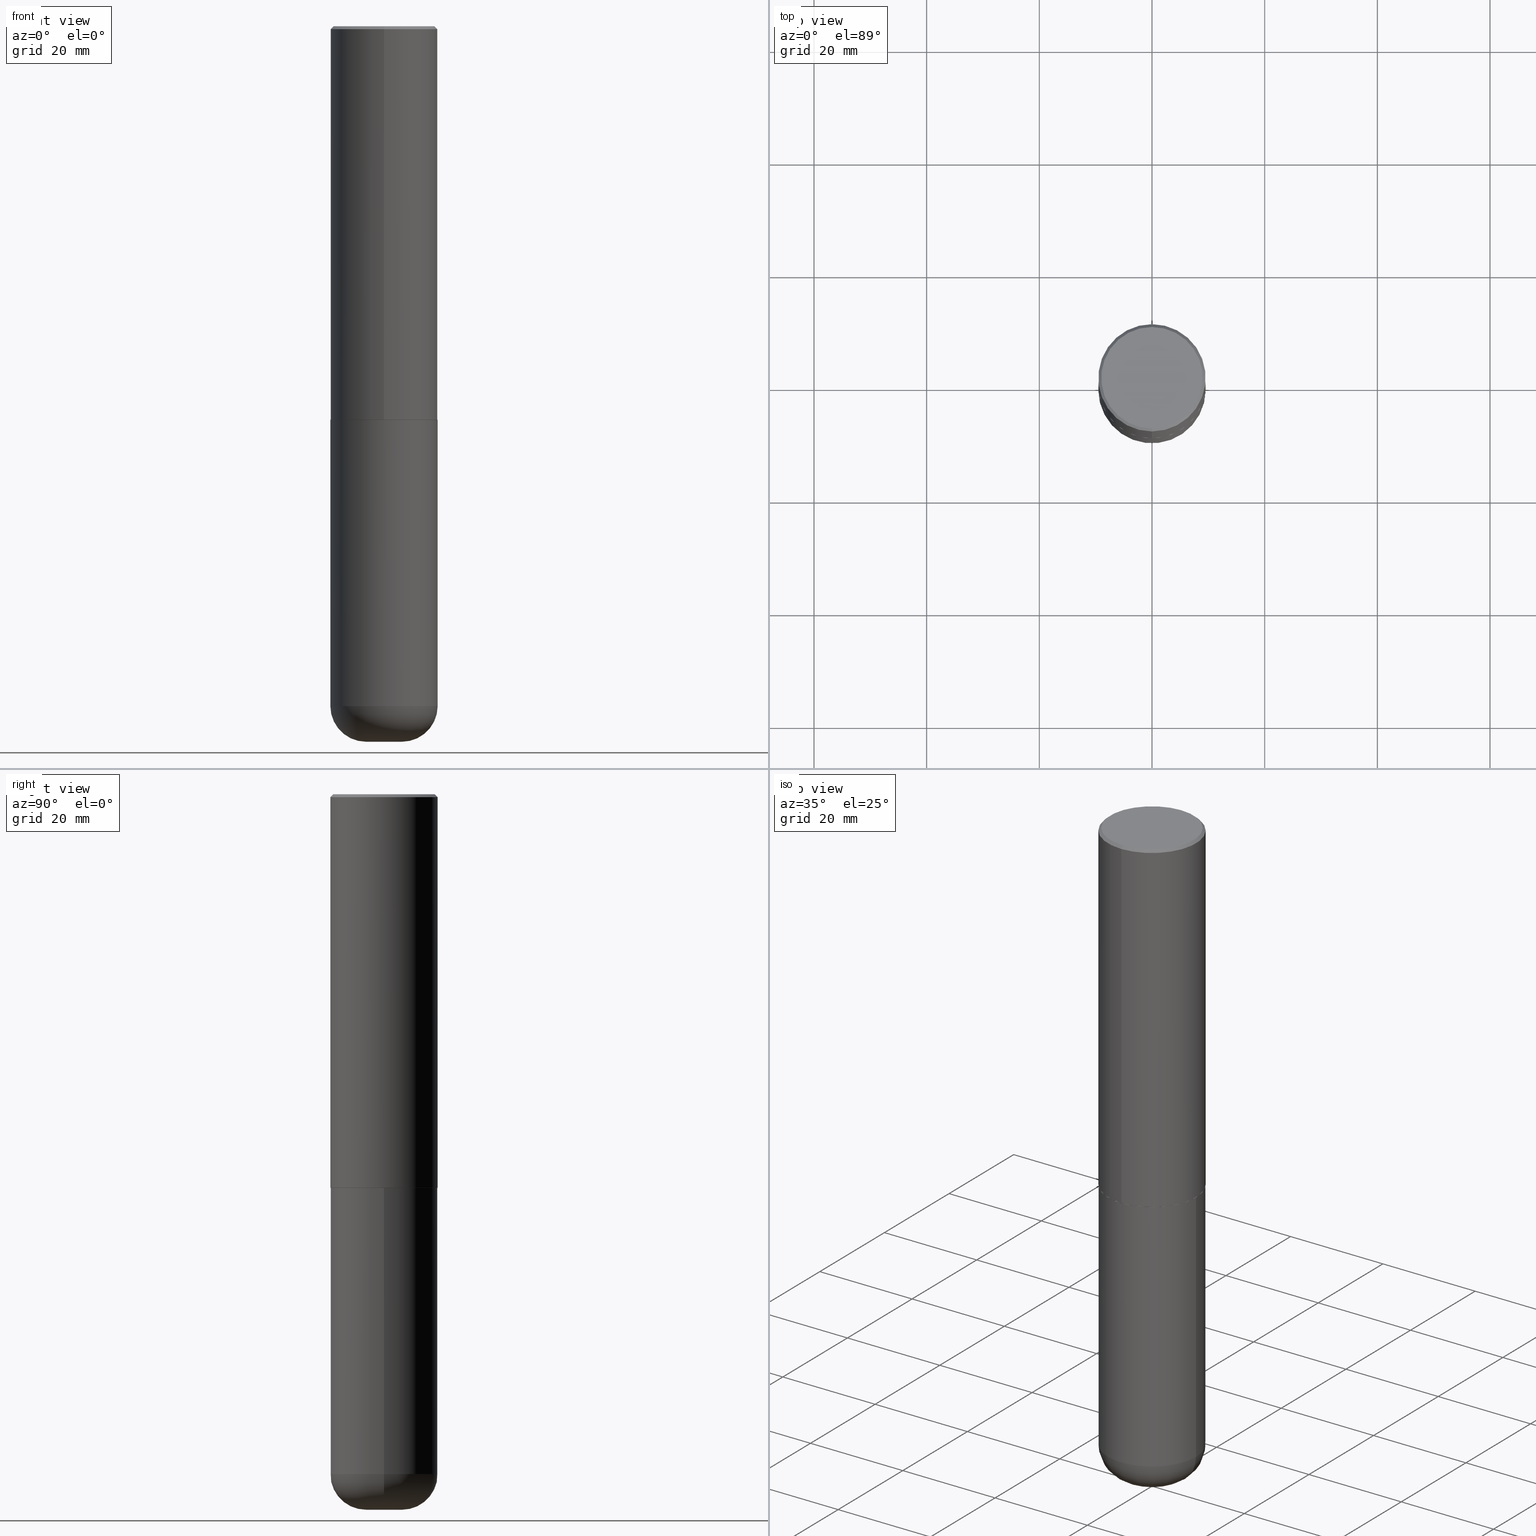
[diagram: canonical four-view strip — front | top / right | iso, engineering-drawing reading convention]
A machine part, canonical four-view strip (front | top / right | iso — engineering-drawing reading convention). The complete STEP part file that produces these views, byte-faithful:
ISO-10303-21;
HEADER;
FILE_DESCRIPTION (( 'STEP AP203' ),
    '1' );
FILE_NAME ('37689.STEP',
    '2024-03-02T08:23:51',
    ( '' ),
    ( '' ),
    'SwSTEP 2.0',
    'SolidWorks 2023',
    '' );
FILE_SCHEMA (( 'CONFIG_CONTROL_DESIGN' ));
ENDSEC;

DATA;
#1 = AXIS2_PLACEMENT_3D ( 'NONE', #287, #129, #194 ) ;
#2 = DIRECTION ( 'NONE',  ( 2.446040391741596606E-29, -3.490662795793665557E-15, -1.000000000000000000 ) ) ;
#3 = VERTEX_POINT ( 'NONE', #278 ) ;
#4 = CARTESIAN_POINT ( 'NONE',  ( 2.478951750578624209E-15, 0.3549999999999999822, -1.215853765202481601E-15 ) ) ;
#5 = VERTEX_POINT ( 'NONE', #168 ) ;
#6 = FACE_OUTER_BOUND ( 'NONE', #268, .T. ) ;
#7 = EDGE_CURVE ( 'NONE', #295, #418, #24, .T. ) ;
#8 = ORIENTED_EDGE ( 'NONE', *, *, #350, .F. ) ;
#9 = DIRECTION ( 'NONE',  ( 1.000000000000000000, -6.982962677686270655E-15, 4.883557194083114583E-29 ) ) ;
#10 = CLOSED_SHELL ( 'NONE', ( #191, #79, #315, #198, #336, #352 ) ) ;
#11 = ORIENTED_EDGE ( 'NONE', *, *, #46, .T. ) ;
#12 = DIRECTION ( 'NONE',  ( -6.982962677686266711E-15, -1.000000000000000000, 3.490662795793665951E-15 ) ) ;
#13 = ORIENTED_EDGE ( 'NONE', *, *, #176, .T. ) ;
#14 = PERSON_AND_ORGANIZATION ( #223, #35 ) ;
#15 = FACE_OUTER_BOUND ( 'NONE', #243, .T. ) ;
#16 = CARTESIAN_POINT ( 'NONE',  ( 6.725039217009124520E-29, -9.601573681818649859E-15, -2.750000000000000000 ) ) ;
#17 = CIRCLE ( 'NONE', #221, 0.3739999999999999991 ) ;
#18 = CALENDAR_DATE ( 2024, 2, 3 ) ;
#19 = EDGE_CURVE ( 'NONE', #5, #32, #126, .T. ) ;
#20 = APPROVAL_STATUS ( 'not_yet_approved' ) ;
#21 = DIMENSIONAL_EXPONENTS ( 1.000000000000000000, 0.000000000000000000, 0.000000000000000000, 0.000000000000000000, 0.000000000000000000, 0.000000000000000000, 0.000000000000000000 ) ;
#22 = PRODUCT_DEFINITION_SHAPE ( 'NONE', 'NONE',  #400 ) ;
#23 = ORIENTED_EDGE ( 'NONE', *, *, #284, .F. ) ;
#24 = CIRCLE ( 'NONE', #73, 0.2500000000000003886 ) ;
#25 = CARTESIAN_POINT ( 'NONE',  ( 4.892080783483214581E-31, -6.981325591587361238E-17, -0.02000000000000008715 ) ) ;
#26 = EDGE_CURVE ( 'NONE', #341, #402, #356, .T. ) ;
#27 = VERTEX_POINT ( 'NONE', #135 ) ;
#28 = CARTESIAN_POINT ( 'NONE',  ( 2.548781377355487113E-15, 0.3549999999999999822, -1.192522237898212341E-15 ) ) ;
#29 = EDGE_LOOP ( 'NONE', ( #108, #71, #139, #298 ) ) ;
#30 = PERSON_AND_ORGANIZATION ( #223, #35 ) ;
#31 = DIRECTION ( 'NONE',  ( 6.982962677686265922E-15, 1.000000000000000000, -3.490662795793665557E-15 ) ) ;
#32 = VERTEX_POINT ( 'NONE', #273 ) ;
#33 = VECTOR ( 'NONE', #261, 39.37007874015748143 ) ;
#34 = DIRECTION ( 'NONE',  ( -2.446040391741596045E-29, 3.490662795793665557E-15, 1.000000000000000000 ) ) ;
#35 = ORGANIZATION ( 'UNSPECIFIED', 'UNSPECIFIED', '' ) ;
#36 = ORIENTED_EDGE ( 'NONE', *, *, #51, .F. ) ;
#37 = CARTESIAN_POINT ( 'NONE',  ( -0.3750000000000000555, -1.042851976156142014E-14, -2.750000000000000000 ) ) ;
#38 = EDGE_LOOP ( 'NONE', ( #232, #319 ) ) ;
#39 = DIRECTION ( 'NONE',  ( -2.445468806185136597E-29, 3.491481338843145583E-15, 1.000000000000000000 ) ) ;
#40 = CARTESIAN_POINT ( 'NONE',  ( 6.724165036897648492E-29, -9.595832025636787455E-15, -2.749000000000000110 ) ) ;
#41 = DESIGN_CONTEXT ( 'detailed design', #351, 'design' ) ;
#42 = CARTESIAN_POINT ( 'NONE',  ( -1.829488409846578039E-28, -6.116697459284396031E-14, -5.000000000000000000 ) ) ;
#43 = ORIENTED_EDGE ( 'NONE', *, *, #26, .T. ) ;
#44 = FACE_OUTER_BOUND ( 'NONE', #354, .T. ) ;
#45 = CARTESIAN_POINT ( 'NONE',  ( -1.141397163745304909E-45, 1.628849886601155835E-31, 4.666305460853910467E-17 ) ) ;
#46 = EDGE_CURVE ( 'NONE', #32, #5, #47, .T. ) ;
#47 = CIRCLE ( 'NONE', #157, 0.3750000000000003886 ) ;
#48 = APPROVAL_ROLE ( '' ) ;
#49 = APPROVAL ( #20, 'UNSPECIFIED' ) ;
#50 = COORDINATED_UNIVERSAL_TIME_OFFSET ( 5, 0, .BEHIND. ) ;
#51 = EDGE_CURVE ( 'NONE', #295, #173, #310, .T. ) ;
#52 = DIRECTION ( 'NONE',  ( -2.446040391741596606E-29, 3.490662795793665557E-15, 1.000000000000000000 ) ) ;
#53 = AXIS2_PLACEMENT_3D ( 'NONE', #331, #300, #101 ) ;
#54 = CONICAL_SURFACE ( 'NONE', #372, 0.3739999999999999991, 0.7853981633977213939 ) ;
#55 = CARTESIAN_POINT ( 'NONE',  ( -1.141397163745304909E-45, 1.628849886601155835E-31, 4.666305460853910467E-17 ) ) ;
#56 = ORIENTED_EDGE ( 'NONE', *, *, #103, .T. ) ;
#57 = LINE ( 'NONE', #289, #252 ) ;
#58 = CIRCLE ( 'NONE', #361, 0.3750000000000000555 ) ;
#59 = CARTESIAN_POINT ( 'NONE',  ( 0.3749999999999999445, -2.618611004132349622E-15, 1.828566290923475642E-29 ) ) ;
#60 = ADVANCED_FACE ( 'NONE', ( #228 ), #91, .T. ) ;
#61 = ORIENTED_EDGE ( 'NONE', *, *, #234, .F. ) ;
#62 = DIRECTION ( 'NONE',  ( -6.982962677686266711E-15, -1.000000000000000000, 2.921762560068730595E-15 ) ) ;
#63 = FACE_OUTER_BOUND ( 'NONE', #38, .T. ) ;
#64 = ORIENTED_EDGE ( 'NONE', *, *, #51, .T. ) ;
#65 = CARTESIAN_POINT ( 'NONE',  ( 0.3750000000000000555, -1.222018468595100145E-14, -2.750000000000000000 ) ) ;
#66 = DIRECTION ( 'NONE',  ( -6.982962677686265922E-15, -1.000000000000000000, 2.913971193241877611E-15 ) ) ;
#67 = DIRECTION ( 'NONE',  ( -2.446040391741596606E-29, 3.490662795793665557E-15, 1.000000000000000000 ) ) ;
#68 = EDGE_LOOP ( 'NONE', ( #11, #87, #265, #119 ) ) ;
#69 = DATE_AND_TIME ( #102, #329 ) ;
#70 = PLANE ( 'NONE',  #317 ) ;
#71 = ORIENTED_EDGE ( 'NONE', *, *, #381, .F. ) ;
#72 = DIRECTION ( 'NONE',  ( -2.445468806185136597E-29, 3.491481338843145583E-15, 1.000000000000000000 ) ) ;
#73 = AXIS2_PLACEMENT_3D ( 'NONE', #405, #200, #165 ) ;
#74 = CC_DESIGN_DATE_AND_TIME_ASSIGNMENT ( #69, #241, ( #296 ) ) ;
#75 = EDGE_LOOP ( 'NONE', ( #306, #130, #224, #262 ) ) ;
#76 = AXIS2_PLACEMENT_3D ( 'NONE', #172, #72, #309 ) ;
#77 = DIRECTION ( 'NONE',  ( -2.446040391741596606E-29, 3.490662795793665557E-15, 1.000000000000000000 ) ) ;
#78 = DIRECTION ( 'NONE',  ( -2.445468806185136877E-29, 3.491481338843145188E-15, 1.000000000000000000 ) ) ;
#79 = ADVANCED_FACE ( 'NONE', ( #388 ), #411, .T. ) ;
#80 = DATE_TIME_ROLE ( 'creation_date' ) ;
#81 = AXIS2_PLACEMENT_3D ( 'NONE', #404, #208, #277 ) ;
#82 = CIRCLE ( 'NONE', #349, 0.1250000000000000555 ) ;
#83 = UNCERTAINTY_MEASURE_WITH_UNIT (LENGTH_MEASURE( 1.000000000000000082E-05 ), #380, 'distance_accuracy_value', 'NONE');
#84 = VECTOR ( 'NONE', #78, 39.37007874015748143 ) ;
#85 = LOCAL_TIME ( 3, 23, 51.00000000000000000, #50 ) ;
#86 =( LENGTH_UNIT ( ) NAMED_UNIT ( * ) SI_UNIT ( $, .METRE. ) );
#87 = ORIENTED_EDGE ( 'NONE', *, *, #255, .T. ) ;
#88 = EDGE_CURVE ( 'NONE', #402, #341, #171, .T. ) ;
#89 = DIRECTION ( 'NONE',  ( 1.000000000000000000, -6.982962677686275388E-15, 0.000000000000000000 ) ) ;
#90 = FACE_OUTER_BOUND ( 'NONE', #210, .T. ) ;
#91 = CONICAL_SURFACE ( 'NONE', #184, 0.3750000000000000555, 0.7853981633974465026 ) ;
#92 = DIRECTION ( 'NONE',  ( 5.024295867789434219E-15, 0.7071067811867430830, 0.7071067811863519514 ) ) ;
#93 = ORIENTED_EDGE ( 'NONE', *, *, #167, .F. ) ;
#94 = CARTESIAN_POINT ( 'NONE',  ( 4.892080783483214581E-31, -6.981325591587361238E-17, -0.02000000000000008715 ) ) ;
#95 = ORIENTED_EDGE ( 'NONE', *, *, #19, .F. ) ;
#96 = EDGE_LOOP ( 'NONE', ( #23, #276, #43, #302 ) ) ;
#97 = COORDINATED_UNIVERSAL_TIME_OFFSET ( 5, 0, .BEHIND. ) ;
#98 = CIRCLE ( 'NONE', #229, 0.2500000000000003886 ) ;
#99 = LINE ( 'NONE', #134, #138 ) ;
#100 = AXIS2_PLACEMENT_3D ( 'NONE', #345, #250, #117 ) ;
#101 = DIRECTION ( 'NONE',  ( -6.982962677686265922E-15, -1.000000000000000000, 3.494488891895536035E-15 ) ) ;
#102 = CALENDAR_DATE ( 2024, 2, 3 ) ;
#103 = EDGE_CURVE ( 'NONE', #245, #170, #382, .T. ) ;
#104 = CARTESIAN_POINT ( 'NONE',  ( -2.572686749164323547E-15, -0.3750000000000001110, -0.01999999999999877570 ) ) ;
#105 = ORIENTED_EDGE ( 'NONE', *, *, #46, .F. ) ;
#106 = ADVANCED_FACE ( 'NONE', ( #90 ), #161, .F. ) ;
#107 = CARTESIAN_POINT ( 'NONE',  ( 0.000000000000000000, 0.000000000000000000, 0.000000000000000000 ) ) ;
#108 = ORIENTED_EDGE ( 'NONE', *, *, #181, .F. ) ;
#109 = DIRECTION ( 'NONE',  ( 1.000000000000000000, -6.982962677686269077E-15, 0.000000000000000000 ) ) ;
#110 = AXIS2_PLACEMENT_3D ( 'NONE', #16, #301, #308 ) ;
#111 = FACE_OUTER_BOUND ( 'NONE', #369, .T. ) ;
#112 = CALENDAR_DATE ( 2024, 2, 3 ) ;
#113 = PERSON_AND_ORGANIZATION ( #223, #35 ) ;
#114 = AXIS2_PLACEMENT_3D ( 'NONE', #236, #362, #66 ) ;
#115 = AXIS2_PLACEMENT_3D ( 'NONE', #166, #213, #12 ) ;
#116 = EDGE_CURVE ( 'NONE', #389, #5, #57, .T. ) ;
#117 = DIRECTION ( 'NONE',  ( 1.000000000000000000, 0.000000000000000000, 0.000000000000000000 ) ) ;
#118 = EDGE_CURVE ( 'NONE', #156, #402, #233, .T. ) ;
#119 = ORIENTED_EDGE ( 'NONE', *, *, #176, .F. ) ;
#120 = LINE ( 'NONE', #123, #33 ) ;
#121 = ORIENTED_EDGE ( 'NONE', *, *, #263, .T. ) ;
#122 = APPROVAL ( #347, 'UNSPECIFIED' ) ;
#123 = CARTESIAN_POINT ( 'NONE',  ( -2.618611004132351594E-15, -0.3750000000000002220, 1.308998548422625521E-15 ) ) ;
#124 = EDGE_CURVE ( 'NONE', #3, #389, #294, .T. ) ;
#125 = CARTESIAN_POINT ( 'NONE',  ( 2.618611004132350411E-15, 0.3749999999999999445, -0.02000000000000139513 ) ) ;
#126 = CIRCLE ( 'NONE', #114, 0.3750000000000003886 ) ;
#127 = CIRCLE ( 'NONE', #363, 0.3549999999999999822 ) ;
#128 = TOROIDAL_SURFACE ( 'NONE', #399, 0.1250000000000000278, 0.2500000000000003886 ) ;
#129 = DIRECTION ( 'NONE',  ( -2.445468806185136597E-29, 3.491481338843145583E-15, 1.000000000000000000 ) ) ;
#130 = ORIENTED_EDGE ( 'NONE', *, *, #350, .T. ) ;
#131 = PRODUCT ( '37689', '37689', '', ( #153 ) ) ;
#132 = DIRECTION ( 'NONE',  ( 4.937700262164538576E-15, 0.7071067811865437980, -0.7071067811865512365 ) ) ;
#133 = ORIENTED_EDGE ( 'NONE', *, *, #147, .F. ) ;
#134 = CARTESIAN_POINT ( 'NONE',  ( 2.664535259100376880E-15, 0.3750000000000002220, -1.308998548422625521E-15 ) ) ;
#135 = CARTESIAN_POINT ( 'NONE',  ( 0.3750000000000002220, -1.920314736363729341E-14, -4.750000000000000000 ) ) ;
#136 = EDGE_CURVE ( 'NONE', #27, #170, #355, .T. ) ;
#137 = CYLINDRICAL_SURFACE ( 'NONE', #346, 0.3749999999999999445 ) ;
#138 = VECTOR ( 'NONE', #239, 39.37007874015748143 ) ;
#139 = ORIENTED_EDGE ( 'NONE', *, *, #118, .T. ) ;
#140 = CC_DESIGN_DATE_AND_TIME_ASSIGNMENT ( #375, #80, ( #400 ) ) ;
#141 = CARTESIAN_POINT ( 'NONE',  ( -0.3749999999999999445, 2.664535259100375303E-15, -1.844600658845589318E-29 ) ) ;
#142 = ORIENTED_EDGE ( 'NONE', *, *, #234, .T. ) ;
#143 = COORDINATED_UNIVERSAL_TIME_OFFSET ( 5, 0, .BEHIND. ) ;
#144 = DIRECTION ( 'NONE',  ( 2.438088387897960049E-29, -3.491481338843145188E-15, -1.000000000000000000 ) ) ;
#145 = PERSON_AND_ORGANIZATION_ROLE ( 'classification_officer' ) ;
#146 = AXIS2_PLACEMENT_3D ( 'NONE', #264, #417, #89 ) ;
#147 = EDGE_CURVE ( 'NONE', #170, #245, #58, .T. ) ;
#148 = APPROVAL_DATE_TIME ( #217, #49 ) ;
#149 = CALENDAR_DATE ( 2024, 2, 3 ) ;
#150 = ADVANCED_FACE ( 'NONE', ( #63 ), #266, .F. ) ;
#151 = CARTESIAN_POINT ( 'NONE',  ( 6.726611077289389265E-29, -9.599322688432580971E-15, -2.750000000000000000 ) ) ;
#152 = PRODUCT_DEFINITION_FORMATION_WITH_SPECIFIED_SOURCE ( 'ANY', '', #131, .NOT_KNOWN. ) ;
#153 = MECHANICAL_CONTEXT ( 'NONE', #216, 'mechanical' ) ;
#154 = PERSON_AND_ORGANIZATION_ROLE ( 'design_owner' ) ;
#155 = DIRECTION ( 'NONE',  ( 2.446040391741596606E-29, -3.490662795793665557E-15, -1.000000000000000000 ) ) ;
#156 = VERTEX_POINT ( 'NONE', #28 ) ;
#157 = AXIS2_PLACEMENT_3D ( 'NONE', #40, #357, #386 ) ;
#158 = DIRECTION ( 'NONE',  ( -6.982962677686265922E-15, -1.000000000000000000, 3.490662795793665557E-15 ) ) ;
#159 = CARTESIAN_POINT ( 'NONE',  ( -2.572686749164323547E-15, -0.3750000000000001110, -0.01999999999999877570 ) ) ;
#160 = ADVANCED_FACE ( 'NONE', ( #390 ), #304, .T. ) ;
#161 = PLANE ( 'NONE',  #196 ) ;
#162 = AXIS2_PLACEMENT_3D ( 'NONE', #267, #360, #293 ) ;
#163 = LOCAL_TIME ( 3, 23, 51.00000000000000000, #413 ) ;
#164 = CARTESIAN_POINT ( 'NONE',  ( 4.892080783483214581E-31, -6.981325591587361238E-17, -0.02000000000000008715 ) ) ;
#165 = DIRECTION ( 'NONE',  ( -1.000000000000000000, 7.105427357601000281E-15, 0.000000000000000000 ) ) ;
#166 = CARTESIAN_POINT ( 'NONE',  ( 0.000000000000000000, 0.000000000000000000, 0.000000000000000000 ) ) ;
#167 = EDGE_CURVE ( 'NONE', #173, #27, #98, .T. ) ;
#168 = CARTESIAN_POINT ( 'NONE',  ( 2.664535259100411196E-15, 0.3749999999999907296, -2.749000000000000998 ) ) ;
#169 = CYLINDRICAL_SURFACE ( 'NONE', #391, 0.3750000000000002220 ) ;
#170 = VERTEX_POINT ( 'NONE', #65 ) ;
#171 = CIRCLE ( 'NONE', #189, 0.3750000000000000555 ) ;
#172 = CARTESIAN_POINT ( 'NONE',  ( 1.161597682937940108E-28, -1.658453635950494339E-14, -4.750000000000000000 ) ) ;
#173 = VERTEX_POINT ( 'NONE', #199 ) ;
#174 = EDGE_CURVE ( 'NONE', #389, #3, #17, .T. ) ;
#175 = DIRECTION ( 'NONE',  ( -6.982962677686265922E-15, -1.000000000000000000, 3.490662795793665557E-15 ) ) ;
#176 = EDGE_CURVE ( 'NONE', #32, #341, #120, .T. ) ;
#177 = LINE ( 'NONE', #141, #84 ) ;
#178 = PERSON_AND_ORGANIZATION ( #223, #35 ) ;
#179 = VECTOR ( 'NONE', #190, 39.37007874015748143 ) ;
#180 = COORDINATED_UNIVERSAL_TIME_OFFSET ( 5, 0, .BEHIND. ) ;
#181 = EDGE_CURVE ( 'NONE', #387, #341, #323, .T. ) ;
#182 = DIRECTION ( 'NONE',  ( -6.982962677686266711E-15, -1.000000000000000000, 2.921762560068730595E-15 ) ) ;
#183 = MANIFOLD_SOLID_BREP ( 'Body-Move/Copy2[1]', #10 ) ;
#184 = AXIS2_PLACEMENT_3D ( 'NONE', #94, #2, #225 ) ;
#185 = CARTESIAN_POINT ( 'NONE',  ( -2.504081769186608216E-15, -0.3549999999999999822, 1.285848347115290366E-15 ) ) ;
#186 = ORIENTED_EDGE ( 'NONE', *, *, #19, .T. ) ;
#187 = DIRECTION ( 'NONE',  ( 1.000000000000000000, -6.982962677686266711E-15, 0.000000000000000000 ) ) ;
#188 = ORIENTED_EDGE ( 'NONE', *, *, #167, .T. ) ;
#189 = AXIS2_PLACEMENT_3D ( 'NONE', #25, #326, #353 ) ;
#190 = DIRECTION ( 'NONE',  ( -2.445468806185136877E-29, 3.491481338843145188E-15, 1.000000000000000000 ) ) ;
#191 = ADVANCED_FACE ( 'NONE', ( #44 ), #203, .T. ) ;
#192 = CARTESIAN_POINT ( 'NONE',  ( 6.725039217009124520E-29, -9.601573681818649859E-15, -2.750000000000000000 ) ) ;
#193 = EDGE_LOOP ( 'NONE', ( #328, #240, #121, #95 ) ) ;
#194 = DIRECTION ( 'NONE',  ( 1.000000000000000000, -6.982962677686270655E-15, 4.883557194083114583E-29 ) ) ;
#195 = ORIENTED_EDGE ( 'NONE', *, *, #7, .F. ) ;
#196 = AXIS2_PLACEMENT_3D ( 'NONE', #4, #330, #31 ) ;
#197 = LOCAL_TIME ( 3, 23, 51.00000000000000000, #180 ) ;
#198 = ADVANCED_FACE ( 'NONE', ( #332 ), #137, .T. ) ;
#199 = CARTESIAN_POINT ( 'NONE',  ( 0.1250000000000000555, -1.833027702892651638E-14, -5.000000000000000888 ) ) ;
#200 = DIRECTION ( 'NONE',  ( 7.105427357601001859E-15, 1.000000000000000000, -3.491481338843145583E-15 ) ) ;
#201 = APPROVAL_STATUS ( 'not_yet_approved' ) ;
#202 = CC_DESIGN_PERSON_AND_ORGANIZATION_ASSIGNMENT ( #283, #409, ( #400 ) ) ;
#203 = CYLINDRICAL_SURFACE ( 'NONE', #338, 0.3749999999999999445 ) ;
#204 = ORIENTED_EDGE ( 'NONE', *, *, #219, .T. ) ;
#205 = APPROVAL_ROLE ( '' ) ;
#206 = DIRECTION ( 'NONE',  ( -2.445468806185136597E-29, 3.491481338843145583E-15, 1.000000000000000000 ) ) ;
#207 = ORIENTED_EDGE ( 'NONE', *, *, #7, .T. ) ;
#208 = DIRECTION ( 'NONE',  ( -2.446040391741596606E-29, 3.490662795793665557E-15, 1.000000000000000000 ) ) ;
#209 = CC_DESIGN_APPROVAL ( #122, ( #152 ) ) ;
#210 = EDGE_LOOP ( 'NONE', ( #333, #288 ) ) ;
#211 = APPROVAL_DATE_TIME ( #235, #321 ) ;
#212 = CYLINDRICAL_SURFACE ( 'NONE', #115, 0.3750000000000002220 ) ;
#213 = DIRECTION ( 'NONE',  ( -2.446040391741596606E-29, 3.490662795793665557E-15, 1.000000000000000000 ) ) ;
#214 = ADVANCED_BREP_SHAPE_REPRESENTATION ( '37689', ( #183, #314, #100 ), #253 ) ;
#215 = PERSON_AND_ORGANIZATION ( #223, #35 ) ;
#216 = APPLICATION_CONTEXT ( 'configuration controlled 3d designs of mechanical parts and assemblies' ) ;
#217 = DATE_AND_TIME ( #18, #163 ) ;
#218 = APPLICATION_PROTOCOL_DEFINITION ( 'international standard', 'config_control_design', 1994, #216 ) ;
#219 = EDGE_CURVE ( 'NONE', #418, #245, #177, .T. ) ;
#220 = CARTESIAN_POINT ( 'NONE',  ( 2.660982545421643429E-15, 0.3739999999999903957, -2.750000000000000888 ) ) ;
#221 = AXIS2_PLACEMENT_3D ( 'NONE', #394, #415, #62 ) ;
#222 = CIRCLE ( 'NONE', #339, 0.3549999999999999822 ) ;
#223 = PERSON ( 'UNSPECIFIED', 'UNSPECIFIED', 'UNSPECIFIED', ('UNSPECIFIED'), ('UNSPECIFIED'), ('UNSPECIFIED') ) ;
#224 = ORIENTED_EDGE ( 'NONE', *, *, #136, .T. ) ;
#225 = DIRECTION ( 'NONE',  ( 6.982962677686265922E-15, 1.000000000000000000, -3.494488891895536035E-15 ) ) ;
#226 = ORIENTED_EDGE ( 'NONE', *, *, #124, .T. ) ;
#227 = ADVANCED_FACE ( 'NONE', ( #343 ), #259, .T. ) ;
#228 = FACE_OUTER_BOUND ( 'NONE', #29, .T. ) ;
#229 = AXIS2_PLACEMENT_3D ( 'NONE', #297, #230, #416 ) ;
#230 = DIRECTION ( 'NONE',  ( -6.982962677686266711E-15, -1.000000000000000000, 3.491481338843145583E-15 ) ) ;
#231 = ADVANCED_FACE ( 'NONE', ( #364 ), #169, .T. ) ;
#232 = ORIENTED_EDGE ( 'NONE', *, *, #124, .F. ) ;
#233 = LINE ( 'NONE', #125, #376 ) ;
#234 = EDGE_CURVE ( 'NONE', #27, #418, #327, .T. ) ;
#235 = DATE_AND_TIME ( #334, #384 ) ;
#236 = CARTESIAN_POINT ( 'NONE',  ( 6.724165036897648492E-29, -9.595832025636787455E-15, -2.749000000000000110 ) ) ;
#237 = AXIS2_PLACEMENT_3D ( 'NONE', #393, #34, #158 ) ;
#238 = AXIS2_PLACEMENT_3D ( 'NONE', #275, #368, #109 ) ;
#239 = DIRECTION ( 'NONE',  ( -2.446040391741596606E-29, 3.490662795793665557E-15, 1.000000000000000000 ) ) ;
#240 = ORIENTED_EDGE ( 'NONE', *, *, #174, .T. ) ;
#241 = DATE_TIME_ROLE ( 'classification_date' ) ;
#242 = DIRECTION ( 'NONE',  ( 1.000000000000000000, -6.982962677686266711E-15, 4.876176775795935793E-29 ) ) ;
#243 = EDGE_LOOP ( 'NONE', ( #365, #56 ) ) ;
#244 = DIRECTION ( 'NONE',  ( -6.982962677686266711E-15, -1.000000000000000000, 3.490662795793665951E-15 ) ) ;
#245 = VERTEX_POINT ( 'NONE', #37 ) ;
#246 = APPROVAL_PERSON_ORGANIZATION ( #178, #49, #312 ) ;
#247 = CARTESIAN_POINT ( 'NONE',  ( 0.000000000000000000, 0.000000000000000000, 0.000000000000000000 ) ) ;
#248 = CARTESIAN_POINT ( 'NONE',  ( 1.222734403092568523E-28, -1.745740669421573304E-14, -5.000000000000000888 ) ) ;
#249 = ADVANCED_FACE ( 'NONE', ( #370 ), #212, .T. ) ;
#250 = DIRECTION ( 'NONE',  ( 0.000000000000000000, 0.000000000000000000, 1.000000000000000000 ) ) ;
#251 = DATE_AND_TIME ( #149, #197 ) ;
#252 = VECTOR ( 'NONE', #92, 39.37007874015748143 ) ;
#253 =( GEOMETRIC_REPRESENTATION_CONTEXT ( 3 ) GLOBAL_UNCERTAINTY_ASSIGNED_CONTEXT ( ( #83 ) ) GLOBAL_UNIT_ASSIGNED_CONTEXT ( ( #380, #258, #378 ) ) REPRESENTATION_CONTEXT ( 'NONE', 'WORKASPACE' ) );
#254 = CARTESIAN_POINT ( 'NONE',  ( -0.3750000000000002220, -1.392000110040456296E-14, -4.750000000000000000 ) ) ;
#255 = EDGE_CURVE ( 'NONE', #5, #402, #99, .T. ) ;
#256 = LENGTH_MEASURE_WITH_UNIT ( LENGTH_MEASURE( 0.02539999999999999897 ), #86 );
#257 = PRODUCT_RELATED_PRODUCT_CATEGORY ( 'detail', '', ( #131 ) ) ;
#258 =( NAMED_UNIT ( * ) PLANE_ANGLE_UNIT ( ) SI_UNIT ( $, .RADIAN. ) );
#259 = CONICAL_SURFACE ( 'NONE', #81, 0.3739999999999999991, 0.7853981633977213939 ) ;
#260 = ORIENTED_EDGE ( 'NONE', *, *, #303, .T. ) ;
#261 = DIRECTION ( 'NONE',  ( -2.446040391741596606E-29, 3.490662795793665557E-15, 1.000000000000000000 ) ) ;
#262 = ORIENTED_EDGE ( 'NONE', *, *, #103, .F. ) ;
#263 = EDGE_CURVE ( 'NONE', #3, #32, #340, .T. ) ;
#264 = CARTESIAN_POINT ( 'NONE',  ( 1.222734403092568523E-28, -1.745740669421573304E-14, -5.000000000000000888 ) ) ;
#265 = ORIENTED_EDGE ( 'NONE', *, *, #26, .F. ) ;
#266 = PLANE ( 'NONE',  #237 ) ;
#267 = CARTESIAN_POINT ( 'NONE',  ( 6.726611077289389265E-29, -9.599322688432580971E-15, -2.750000000000000000 ) ) ;
#268 = EDGE_LOOP ( 'NONE', ( #195, #64, #188, #8 ) ) ;
#269 = DIRECTION ( 'NONE',  ( -2.445468806185136597E-29, 3.491481338843145583E-15, 1.000000000000000000 ) ) ;
#270 = CC_DESIGN_PERSON_AND_ORGANIZATION_ASSIGNMENT ( #113, #348, ( #152 ) ) ;
#271 = EDGE_LOOP ( 'NONE', ( #260, #207, #61, #93 ) ) ;
#272 = DIRECTION ( 'NONE',  ( -2.445468806185136597E-29, 3.491481338843145583E-15, 1.000000000000000000 ) ) ;
#273 = CARTESIAN_POINT ( 'NONE',  ( -2.618611004132284935E-15, -0.3750000000000099920, -2.748999999999999222 ) ) ;
#274 = AXIS2_PLACEMENT_3D ( 'NONE', #164, #155, #320 ) ;
#275 = CARTESIAN_POINT ( 'NONE',  ( 1.161597682937940108E-28, -1.658453635950494339E-14, -4.750000000000000000 ) ) ;
#276 = ORIENTED_EDGE ( 'NONE', *, *, #181, .T. ) ;
#277 = DIRECTION ( 'NONE',  ( -6.982962677686266711E-15, -1.000000000000000000, 2.921762560068730595E-15 ) ) ;
#278 = CARTESIAN_POINT ( 'NONE',  ( -2.611628041454596160E-15, -0.3740000000000096581, -2.749999999999998668 ) ) ;
#279 = DIRECTION ( 'NONE',  ( -1.000000000000000000, 6.982962677686265922E-15, -4.876176775795935793E-29 ) ) ;
#280 = AXIS2_PLACEMENT_3D ( 'NONE', #192, #292, #324 ) ;
#281 = CC_DESIGN_APPROVAL ( #49, ( #400 ) ) ;
#282 = CARTESIAN_POINT ( 'NONE',  ( -0.1250000000000000555, -1.524461468746008302E-14, -5.000000000000000888 ) ) ;
#283 = PERSON_AND_ORGANIZATION ( #223, #35 ) ;
#284 = EDGE_CURVE ( 'NONE', #387, #156, #222, .T. ) ;
#285 = CARTESIAN_POINT ( 'NONE',  ( 2.618611004132350411E-15, 0.3749999999999999445, -0.02000000000000139513 ) ) ;
#286 = APPLICATION_PROTOCOL_DEFINITION ( 'international standard', 'config_control_design', 1994, #351 ) ;
#287 = CARTESIAN_POINT ( 'NONE',  ( 1.161597682937940108E-28, -1.658453635950494339E-14, -4.750000000000000000 ) ) ;
#288 = ORIENTED_EDGE ( 'NONE', *, *, #284, .T. ) ;
#289 = CARTESIAN_POINT ( 'NONE',  ( 2.657429831742841742E-15, 0.3739999999999903957, -2.750000000000000888 ) ) ;
#290 = EDGE_LOOP ( 'NONE', ( #371, #186, #13, #385 ) ) ;
#291 = CC_DESIGN_PERSON_AND_ORGANIZATION_ASSIGNMENT ( #412, #154, ( #131 ) ) ;
#292 = DIRECTION ( 'NONE',  ( -2.445468806185136597E-29, 3.491481338843145583E-15, 1.000000000000000000 ) ) ;
#293 = DIRECTION ( 'NONE',  ( -6.982962677686266711E-15, -1.000000000000000000, 2.921762560068730595E-15 ) ) ;
#294 = CIRCLE ( 'NONE', #162, 0.3739999999999999991 ) ;
#295 = VERTEX_POINT ( 'NONE', #282 ) ;
#296 = SECURITY_CLASSIFICATION ( '', '', #307 ) ;
#297 = CARTESIAN_POINT ( 'NONE',  ( 0.1250000000000000278, -1.745740669421572673E-14, -4.750000000000000000 ) ) ;
#298 = ORIENTED_EDGE ( 'NONE', *, *, #88, .T. ) ;
#299 = CARTESIAN_POINT ( 'NONE',  ( -2.611628041454596160E-15, -0.3740000000000096581, -2.749999999999998668 ) ) ;
#300 = DIRECTION ( 'NONE',  ( -2.446040391741596606E-29, 3.490662795793665557E-15, 1.000000000000000000 ) ) ;
#301 = DIRECTION ( 'NONE',  ( 2.438088387897960049E-29, -3.491481338843145188E-15, -1.000000000000000000 ) ) ;
#302 = ORIENTED_EDGE ( 'NONE', *, *, #118, .F. ) ;
#303 = EDGE_CURVE ( 'NONE', #173, #295, #82, .T. ) ;
#304 = CONICAL_SURFACE ( 'NONE', #274, 0.3750000000000000555, 0.7853981633974465026 ) ;
#305 = CARTESIAN_POINT ( 'NONE',  ( 0.000000000000000000, 0.000000000000000000, 0.000000000000000000 ) ) ;
#306 = ORIENTED_EDGE ( 'NONE', *, *, #219, .F. ) ;
#307 = SECURITY_CLASSIFICATION_LEVEL ( 'unclassified' ) ;
#308 = DIRECTION ( 'NONE',  ( -1.000000000000000000, 6.982962677686265922E-15, -4.876176775795935793E-29 ) ) ;
#309 = DIRECTION ( 'NONE',  ( 1.000000000000000000, -6.982962677686269077E-15, 0.000000000000000000 ) ) ;
#310 = CIRCLE ( 'NONE', #146, 0.1250000000000000555 ) ;
#311 = APPROVAL_PERSON_ORGANIZATION ( #366, #321, #205 ) ;
#312 = APPROVAL_ROLE ( '' ) ;
#313 = DIRECTION ( 'NONE',  ( -2.446040391741596606E-29, 3.490662795793665557E-15, 1.000000000000000000 ) ) ;
#314 = MANIFOLD_SOLID_BREP ( 'Body-Move/Copy2[2]', #316 ) ;
#315 = ADVANCED_FACE ( 'NONE', ( #15 ), #406, .F. ) ;
#316 = CLOSED_SHELL ( 'NONE', ( #403, #249, #160, #60, #231, #227, #150, #106 ) ) ;
#317 = AXIS2_PLACEMENT_3D ( 'NONE', #42, #144, #279 ) ;
#318 = VECTOR ( 'NONE', #401, 39.37007874015748143 ) ;
#319 = ORIENTED_EDGE ( 'NONE', *, *, #174, .F. ) ;
#320 = DIRECTION ( 'NONE',  ( 6.982962677686265922E-15, 1.000000000000000000, -3.494488891895536035E-15 ) ) ;
#321 = APPROVAL ( #201, 'UNSPECIFIED' ) ;
#322 = CC_DESIGN_SECURITY_CLASSIFICATION ( #296, ( #152 ) ) ;
#323 = LINE ( 'NONE', #159, #397 ) ;
#324 = DIRECTION ( 'NONE',  ( 1.000000000000000000, -6.982962677686266711E-15, 0.000000000000000000 ) ) ;
#325 = EDGE_LOOP ( 'NONE', ( #226, #358, #105, #337 ) ) ;
#326 = DIRECTION ( 'NONE',  ( -2.446040391741596606E-29, 3.490662795793665557E-15, 1.000000000000000000 ) ) ;
#327 = CIRCLE ( 'NONE', #76, 0.3749999999999999445 ) ;
#328 = ORIENTED_EDGE ( 'NONE', *, *, #116, .F. ) ;
#329 = LOCAL_TIME ( 3, 23, 51.00000000000000000, #143 ) ;
#330 = DIRECTION ( 'NONE',  ( 2.446040391741596045E-29, -3.490662795793665557E-15, -1.000000000000000000 ) ) ;
#331 = CARTESIAN_POINT ( 'NONE',  ( 4.892080783483214581E-31, -6.981325591587361238E-17, -0.02000000000000008715 ) ) ;
#332 = FACE_OUTER_BOUND ( 'NONE', #75, .T. ) ;
#333 = ORIENTED_EDGE ( 'NONE', *, *, #381, .T. ) ;
#334 = CALENDAR_DATE ( 2024, 2, 3 ) ;
#335 = DIRECTION ( 'NONE',  ( 1.000000000000000000, -6.982962677686266711E-15, 4.876176775795935793E-29 ) ) ;
#336 = ADVANCED_FACE ( 'NONE', ( #6 ), #128, .T. ) ;
#337 = ORIENTED_EDGE ( 'NONE', *, *, #263, .F. ) ;
#338 = AXIS2_PLACEMENT_3D ( 'NONE', #247, #206, #335 ) ;
#339 = AXIS2_PLACEMENT_3D ( 'NONE', #45, #67, #175 ) ;
#340 = LINE ( 'NONE', #299, #318 ) ;
#341 = VERTEX_POINT ( 'NONE', #104 ) ;
#342 = SHAPE_DEFINITION_REPRESENTATION ( #22, #214 ) ;
#343 = FACE_OUTER_BOUND ( 'NONE', #193, .T. ) ;
#344 = CC_DESIGN_PERSON_AND_ORGANIZATION_ASSIGNMENT ( #14, #145, ( #296 ) ) ;
#345 = CARTESIAN_POINT ( 'NONE',  ( 0.000000000000000000, 0.000000000000000000, 0.000000000000000000 ) ) ;
#346 = AXIS2_PLACEMENT_3D ( 'NONE', #305, #396, #242 ) ;
#347 = APPROVAL_STATUS ( 'not_yet_approved' ) ;
#348 = PERSON_AND_ORGANIZATION_ROLE ( 'creator' ) ;
#349 = AXIS2_PLACEMENT_3D ( 'NONE', #248, #39, #373 ) ;
#350 = EDGE_CURVE ( 'NONE', #418, #27, #407, .T. ) ;
#351 = APPLICATION_CONTEXT ( 'configuration controlled 3d designs of mechanical parts and assemblies' ) ;
#352 = ADVANCED_FACE ( 'NONE', ( #111 ), #70, .T. ) ;
#353 = DIRECTION ( 'NONE',  ( -6.982962677686265922E-15, -1.000000000000000000, 3.494488891895536035E-15 ) ) ;
#354 = EDGE_LOOP ( 'NONE', ( #142, #204, #133, #398 ) ) ;
#355 = LINE ( 'NONE', #59, #179 ) ;
#356 = CIRCLE ( 'NONE', #53, 0.3750000000000000555 ) ;
#357 = DIRECTION ( 'NONE',  ( -2.446040391741596606E-29, 3.490662795793665557E-15, 1.000000000000000000 ) ) ;
#358 = ORIENTED_EDGE ( 'NONE', *, *, #116, .T. ) ;
#359 = CARTESIAN_POINT ( 'NONE',  ( 6.725039217009124520E-29, -9.601573681818649859E-15, -2.750000000000000000 ) ) ;
#360 = DIRECTION ( 'NONE',  ( -2.446040391741596606E-29, 3.490662795793665557E-15, 1.000000000000000000 ) ) ;
#361 = AXIS2_PLACEMENT_3D ( 'NONE', #359, #269, #187 ) ;
#362 = DIRECTION ( 'NONE',  ( -2.446040391741596606E-29, 3.490662795793665557E-15, 1.000000000000000000 ) ) ;
#363 = AXIS2_PLACEMENT_3D ( 'NONE', #55, #52, #383 ) ;
#364 = FACE_OUTER_BOUND ( 'NONE', #290, .T. ) ;
#365 = ORIENTED_EDGE ( 'NONE', *, *, #147, .T. ) ;
#366 = PERSON_AND_ORGANIZATION ( #223, #35 ) ;
#367 = CC_DESIGN_PERSON_AND_ORGANIZATION_ASSIGNMENT ( #30, #392, ( #152 ) ) ;
#368 = DIRECTION ( 'NONE',  ( -2.445468806185136597E-29, 3.491481338843145583E-15, 1.000000000000000000 ) ) ;
#369 = EDGE_LOOP ( 'NONE', ( #395, #36 ) ) ;
#370 = FACE_OUTER_BOUND ( 'NONE', #68, .T. ) ;
#371 = ORIENTED_EDGE ( 'NONE', *, *, #255, .F. ) ;
#372 = AXIS2_PLACEMENT_3D ( 'NONE', #151, #313, #182 ) ;
#373 = DIRECTION ( 'NONE',  ( 1.000000000000000000, -6.982962677686275388E-15, 0.000000000000000000 ) ) ;
#374 = DIRECTION ( 'NONE',  ( -4.851104656540954809E-15, -0.7071067811865486830, -0.7071067811865463515 ) ) ;
#375 = DATE_AND_TIME ( #112, #85 ) ;
#376 = VECTOR ( 'NONE', #132, 39.37007874015748143 ) ;
#377 = CC_DESIGN_APPROVAL ( #321, ( #296 ) ) ;
#378 =( NAMED_UNIT ( * ) SI_UNIT ( $, .STERADIAN. ) SOLID_ANGLE_UNIT ( ) );
#379 = FACE_OUTER_BOUND ( 'NONE', #325, .T. ) ;
#380 =( CONVERSION_BASED_UNIT ( 'INCH', #256 ) LENGTH_UNIT ( ) NAMED_UNIT ( #21 ) );
#381 = EDGE_CURVE ( 'NONE', #156, #387, #127, .T. ) ;
#382 = CIRCLE ( 'NONE', #280, 0.3750000000000000555 ) ;
#383 = DIRECTION ( 'NONE',  ( -6.982962677686265922E-15, -1.000000000000000000, 3.490662795793665557E-15 ) ) ;
#384 = LOCAL_TIME ( 3, 23, 51.00000000000000000, #97 ) ;
#385 = ORIENTED_EDGE ( 'NONE', *, *, #88, .F. ) ;
#386 = DIRECTION ( 'NONE',  ( -6.982962677686265922E-15, -1.000000000000000000, 2.913971193241877611E-15 ) ) ;
#387 = VERTEX_POINT ( 'NONE', #185 ) ;
#388 = FACE_OUTER_BOUND ( 'NONE', #271, .T. ) ;
#389 = VERTEX_POINT ( 'NONE', #220 ) ;
#390 = FACE_OUTER_BOUND ( 'NONE', #96, .T. ) ;
#391 = AXIS2_PLACEMENT_3D ( 'NONE', #107, #77, #244 ) ;
#392 = PERSON_AND_ORGANIZATION_ROLE ( 'design_supplier' ) ;
#393 = CARTESIAN_POINT ( 'NONE',  ( 6.726611077289389265E-29, -9.599322688432580971E-15, -2.750000000000000000 ) ) ;
#394 = CARTESIAN_POINT ( 'NONE',  ( 6.726611077289389265E-29, -9.599322688432580971E-15, -2.750000000000000000 ) ) ;
#395 = ORIENTED_EDGE ( 'NONE', *, *, #303, .F. ) ;
#396 = DIRECTION ( 'NONE',  ( -2.445468806185136597E-29, 3.491481338843145583E-15, 1.000000000000000000 ) ) ;
#397 = VECTOR ( 'NONE', #374, 39.37007874015748143 ) ;
#398 = ORIENTED_EDGE ( 'NONE', *, *, #136, .F. ) ;
#399 = AXIS2_PLACEMENT_3D ( 'NONE', #408, #272, #9 ) ;
#400 = PRODUCT_DEFINITION ( 'UNKNOWN', '', #152, #41 ) ;
#401 = DIRECTION ( 'NONE',  ( -4.937700262165896205E-15, -0.7071067811867381980, 0.7071067811863568364 ) ) ;
#402 = VERTEX_POINT ( 'NONE', #285 ) ;
#403 = ADVANCED_FACE ( 'NONE', ( #379 ), #54, .T. ) ;
#404 = CARTESIAN_POINT ( 'NONE',  ( 6.726611077289389265E-29, -9.599322688432580971E-15, -2.750000000000000000 ) ) ;
#405 = CARTESIAN_POINT ( 'NONE',  ( -0.1250000000000000278, -1.569635793980481500E-14, -4.750000000000000000 ) ) ;
#406 = PLANE ( 'NONE',  #110 ) ;
#407 = CIRCLE ( 'NONE', #238, 0.3749999999999999445 ) ;
#408 = CARTESIAN_POINT ( 'NONE',  ( 1.161597682937940108E-28, -1.658453635950494339E-14, -4.750000000000000000 ) ) ;
#409 = PERSON_AND_ORGANIZATION_ROLE ( 'creator' ) ;
#410 = APPROVAL_DATE_TIME ( #251, #122 ) ;
#411 = TOROIDAL_SURFACE ( 'NONE', #1, 0.1250000000000000278, 0.2500000000000003886 ) ;
#412 = PERSON_AND_ORGANIZATION ( #223, #35 ) ;
#413 = COORDINATED_UNIVERSAL_TIME_OFFSET ( 5, 0, .BEHIND. ) ;
#414 = APPROVAL_PERSON_ORGANIZATION ( #215, #122, #48 ) ;
#415 = DIRECTION ( 'NONE',  ( -2.446040391741596606E-29, 3.490662795793665557E-15, 1.000000000000000000 ) ) ;
#416 = DIRECTION ( 'NONE',  ( 1.000000000000000000, -6.982962677686259611E-15, 0.000000000000000000 ) ) ;
#417 = DIRECTION ( 'NONE',  ( -2.445468806185136597E-29, 3.491481338843145583E-15, 1.000000000000000000 ) ) ;
#418 = VERTEX_POINT ( 'NONE', #254 ) ;
ENDSEC;
END-ISO-10303-21;
